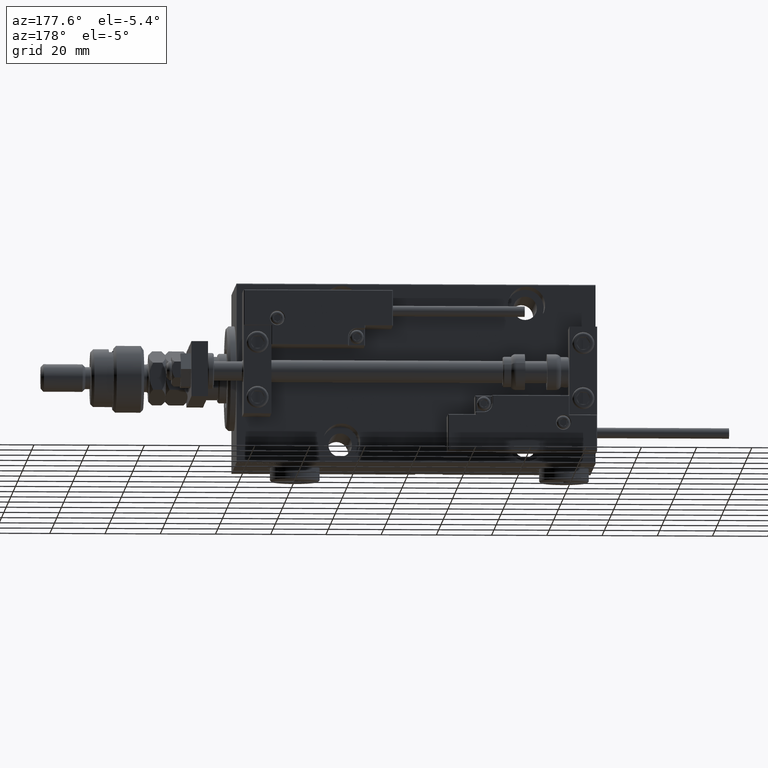
[diagram: clean part render]
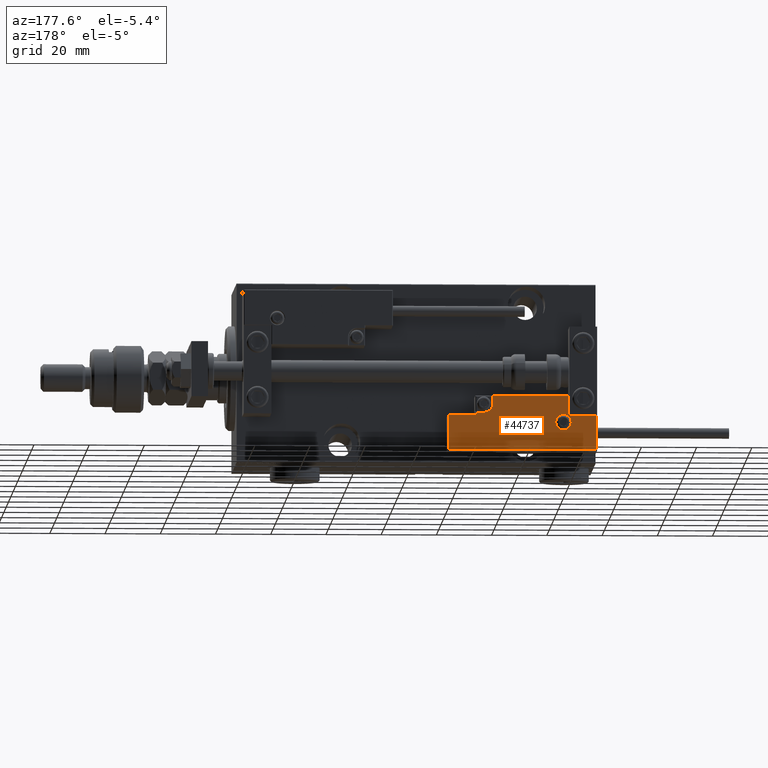
[diagram: same view with one face highlighted and labeled with its STEP entity id]
A machine part, auxiliary view. The second image highlights one B-rep face of the part: STEP entity #44737.
In plain terms, the highlighted planar face has unit normal (-0, 1, 0).
Its self-contained STEP definition (entity closure, byte-faithful):
#925 = FACE_OUTER_BOUND ( 'NONE', #20033, .T. ) ;
#1190 = PLANE ( 'NONE',  #5448 ) ;
#2092 = EDGE_CURVE ( 'NONE', #2790, #44633, #23095, .T. ) ;
#2344 = VERTEX_POINT ( 'NONE', #2877 ) ;
#2466 = VERTEX_POINT ( 'NONE', #3973 ) ;
#2469 = CARTESIAN_POINT ( 'NONE',  ( -17.59999999999994813, 9.800000000000004263, 14.00000000000000000 ) ) ;
#2790 = VERTEX_POINT ( 'NONE', #13945 ) ;
#2877 = CARTESIAN_POINT ( 'NONE',  ( -16.69999999999999218, 0.3000000000000032085, 14.00000000000000000 ) ) ;
#3855 = DIRECTION ( 'NONE',  ( 1.000000000000000000, 0.000000000000000000, 0.000000000000000000 ) ) ;
#3865 = CARTESIAN_POINT ( 'NONE',  ( 17.00000000000000000, 6.300000000000003375, 14.00000000000000000 ) ) ;
#3973 = CARTESIAN_POINT ( 'NONE',  ( -11.99999999999994849, 9.800000000000004263, 14.00000000000000000 ) ) ;
#4068 = LINE ( 'NONE', #45200, #47475 ) ;
#4215 = DIRECTION ( 'NONE',  ( 9.912705577010318647E-16, 1.000000000000000000, 0.000000000000000000 ) ) ;
#4761 = ORIENTED_EDGE ( 'NONE', *, *, #17379, .T. ) ;
#5448 = AXIS2_PLACEMENT_3D ( 'NONE', #13263, #22043, #26407 ) ;
#5822 = CARTESIAN_POINT ( 'NONE',  ( 11.00000000000000000, 0.3000000000000032085, 14.00000000000000000 ) ) ;
#6696 = CIRCLE ( 'NONE', #45224, 3.299999999999997158 ) ;
#7050 = EDGE_CURVE ( 'NONE', #51741, #47473, #13797, .T. ) ;
#7138 = CARTESIAN_POINT ( 'NONE',  ( 10.69999999999999929, 3.000000000000003109, 14.00000000000000000 ) ) ;
#7734 = ORIENTED_EDGE ( 'NONE', *, *, #37449, .T. ) ;
#8052 = ORIENTED_EDGE ( 'NONE', *, *, #7050, .T. ) ;
#8539 = EDGE_CURVE ( 'NONE', #49960, #50113, #4068, .T. ) ;
#8850 = DIRECTION ( 'NONE',  ( 0.000000000000000000, -0.000000000000000000, -1.000000000000000000 ) ) ;
#9492 = DIRECTION ( 'NONE',  ( -1.000000000000000000, 6.424901762877063495E-17, -0.000000000000000000 ) ) ;
#9932 = CARTESIAN_POINT ( 'NONE',  ( -14.79999999999994920, 9.800000000000004263, 14.00000000000000000 ) ) ;
#9940 = DIRECTION ( 'NONE',  ( 1.000000000000000000, -0.000000000000000000, 0.000000000000000000 ) ) ;
#10657 = DIRECTION ( 'NONE',  ( 0.000000000000000000, -1.000000000000000000, 0.000000000000000000 ) ) ;
#12513 = CARTESIAN_POINT ( 'NONE',  ( -26.69999999999994600, 7.300000000000005151, 14.00000000000000000 ) ) ;
#12563 = DIRECTION ( 'NONE',  ( -0.000000000000000000, 1.000000000000000000, -0.000000000000000000 ) ) ;
#13258 = VECTOR ( 'NONE', #52689, 1000.000000000000000 ) ;
#13263 = CARTESIAN_POINT ( 'NONE',  ( 0.000000000000000000, 0.000000000000000000, 14.00000000000000000 ) ) ;
#13707 = VECTOR ( 'NONE', #51050, 1000.000000000000000 ) ;
#13797 = LINE ( 'NONE', #43118, #33448 ) ;
#13884 = CARTESIAN_POINT ( 'NONE',  ( -26.99999999999993605, 19.70000000000002061, 14.00000000000000000 ) ) ;
#13945 = CARTESIAN_POINT ( 'NONE',  ( 26.70000000000006324, 7.300000000000007816, 14.00000000000000000 ) ) ;
#14603 = EDGE_LOOP ( 'NONE', ( #29658, #39760 ) ) ;
#14776 = LINE ( 'NONE', #31503, #38555 ) ;
#15341 = EDGE_CURVE ( 'NONE', #25052, #51741, #46240, .T. ) ;
#15835 = ORIENTED_EDGE ( 'NONE', *, *, #38937, .T. ) ;
#16376 = AXIS2_PLACEMENT_3D ( 'NONE', #42228, #21131, #3855 ) ;
#16992 = EDGE_CURVE ( 'NONE', #47133, #2790, #29938, .T. ) ;
#17373 = LINE ( 'NONE', #5822, #21882 ) ;
#17379 = EDGE_CURVE ( 'NONE', #45648, #47133, #33282, .T. ) ;
#18264 = CARTESIAN_POINT ( 'NONE',  ( -26.69999999999994600, 7.000000000000005329, 14.00000000000000000 ) ) ;
#19074 = VERTEX_POINT ( 'NONE', #28719 ) ;
#20033 = EDGE_LOOP ( 'NONE', ( #7734, #15835, #32958, #45014, #43613, #4761, #47252, #39904, #46717, #29077, #8052 ) ) ;
#20154 = CARTESIAN_POINT ( 'NONE',  ( 16.69999999999999929, 6.300000000000003375, 14.00000000000000000 ) ) ;
#21131 = DIRECTION ( 'NONE',  ( 0.000000000000000000, -0.000000000000000000, -1.000000000000000000 ) ) ;
#21258 = EDGE_CURVE ( 'NONE', #2466, #46173, #52260, .T. ) ;
#21486 = DIRECTION ( 'NONE',  ( 1.000000000000000000, 0.000000000000000000, 0.000000000000000000 ) ) ;
#21882 = VECTOR ( 'NONE', #9940, 1000.000000000000000 ) ;
#22043 = DIRECTION ( 'NONE',  ( -0.000000000000000000, 0.000000000000000000, 1.000000000000000000 ) ) ;
#23095 = LINE ( 'NONE', #48296, #29852 ) ;
#23248 = VECTOR ( 'NONE', #42669, 1000.000000000000000 ) ;
#23625 = DIRECTION ( 'NONE',  ( 0.000000000000000000, 1.000000000000000000, -0.000000000000000000 ) ) ;
#24991 = EDGE_CURVE ( 'NONE', #50113, #19074, #6696, .T. ) ;
#25052 = VERTEX_POINT ( 'NONE', #47172 ) ;
#26389 = DIRECTION ( 'NONE',  ( 1.000000000000000000, -1.734723475976815230E-16, 0.000000000000000000 ) ) ;
#26407 = DIRECTION ( 'NONE',  ( 1.000000000000000000, 0.000000000000000000, 0.000000000000000000 ) ) ;
#28097 = CIRCLE ( 'NONE', #46482, 2.800000000000000266 ) ;
#28719 = CARTESIAN_POINT ( 'NONE',  ( 13.99999999999999822, 6.300000000000001599, 14.00000000000000000 ) ) ;
#29077 = ORIENTED_EDGE ( 'NONE', *, *, #15341, .T. ) ;
#29658 = ORIENTED_EDGE ( 'NONE', *, *, #21258, .T. ) ;
#29852 = VECTOR ( 'NONE', #23625, 1000.000000000000000 ) ;
#29938 = LINE ( 'NONE', #46637, #13707 ) ;
#31503 = CARTESIAN_POINT ( 'NONE',  ( -16.69999999999999218, 3.252606517456513302E-15, 14.00000000000000000 ) ) ;
#32958 = ORIENTED_EDGE ( 'NONE', *, *, #8539, .T. ) ;
#33282 = LINE ( 'NONE', #50002, #44346 ) ;
#33448 = VECTOR ( 'NONE', #26389, 1000.000000000000000 ) ;
#34392 = FACE_BOUND ( 'NONE', #14603, .T. ) ;
#37156 = CARTESIAN_POINT ( 'NONE',  ( 26.70000000000006324, 19.70000000000001705, 14.00000000000000000 ) ) ;
#37449 = EDGE_CURVE ( 'NONE', #47473, #2344, #14776, .T. ) ;
#37881 = DIRECTION ( 'NONE',  ( 0.000000000000000000, -0.000000000000000000, -1.000000000000000000 ) ) ;
#38013 = EDGE_CURVE ( 'NONE', #46173, #2466, #28097, .T. ) ;
#38555 = VECTOR ( 'NONE', #10657, 1000.000000000000000 ) ;
#38822 = VECTOR ( 'NONE', #9492, 1000.000000000000000 ) ;
#38937 = EDGE_CURVE ( 'NONE', #2344, #49960, #17373, .T. ) ;
#39760 = ORIENTED_EDGE ( 'NONE', *, *, #38013, .T. ) ;
#39904 = ORIENTED_EDGE ( 'NONE', *, *, #2092, .T. ) ;
#41434 = LINE ( 'NONE', #3865, #13258 ) ;
#42228 = CARTESIAN_POINT ( 'NONE',  ( -14.79999999999994920, 9.800000000000004263, 14.00000000000000000 ) ) ;
#42669 = DIRECTION ( 'NONE',  ( -8.006416042969869188E-16, -1.000000000000000000, 0.000000000000000000 ) ) ;
#42670 = EDGE_CURVE ( 'NONE', #19074, #45648, #41434, .T. ) ;
#43118 = CARTESIAN_POINT ( 'NONE',  ( -16.99999999999999289, 7.300000000000003375, 14.00000000000000000 ) ) ;
#43613 = ORIENTED_EDGE ( 'NONE', *, *, #42670, .T. ) ;
#44346 = VECTOR ( 'NONE', #4215, 1000.000000000000000 ) ;
#44633 = VERTEX_POINT ( 'NONE', #37156 ) ;
#44737 = ADVANCED_FACE ( 'NONE', ( #34392, #925 ), #1190, .T. ) ;
#45014 = ORIENTED_EDGE ( 'NONE', *, *, #24991, .T. ) ;
#45200 = CARTESIAN_POINT ( 'NONE',  ( 10.69999999999999929, 3.000000000000003109, 14.00000000000000000 ) ) ;
#45224 = AXIS2_PLACEMENT_3D ( 'NONE', #49685, #37881, #49127 ) ;
#45648 = VERTEX_POINT ( 'NONE', #20154 ) ;
#46173 = VERTEX_POINT ( 'NONE', #2469 ) ;
#46240 = LINE ( 'NONE', #18264, #23248 ) ;
#46482 = AXIS2_PLACEMENT_3D ( 'NONE', #9932, #8850, #21486 ) ;
#46637 = CARTESIAN_POINT ( 'NONE',  ( 27.00000000000006395, 7.300000000000007816, 14.00000000000000000 ) ) ;
#46717 = ORIENTED_EDGE ( 'NONE', *, *, #46902, .T. ) ;
#46902 = EDGE_CURVE ( 'NONE', #44633, #25052, #50648, .T. ) ;
#47133 = VERTEX_POINT ( 'NONE', #50856 ) ;
#47172 = CARTESIAN_POINT ( 'NONE',  ( -26.69999999999993534, 19.70000000000002061, 14.00000000000000000 ) ) ;
#47252 = ORIENTED_EDGE ( 'NONE', *, *, #16992, .T. ) ;
#47473 = VERTEX_POINT ( 'NONE', #47741 ) ;
#47475 = VECTOR ( 'NONE', #12563, 1000.000000000000000 ) ;
#47741 = CARTESIAN_POINT ( 'NONE',  ( -16.69999999999999218, 7.300000000000003375, 14.00000000000000000 ) ) ;
#48296 = CARTESIAN_POINT ( 'NONE',  ( 26.70000000000006324, 20.00000000000001776, 14.00000000000000000 ) ) ;
#49127 = DIRECTION ( 'NONE',  ( 1.000000000000000000, 0.000000000000000000, 0.000000000000000000 ) ) ;
#49685 = CARTESIAN_POINT ( 'NONE',  ( 13.99999999999999822, 3.000000000000002665, 14.00000000000000000 ) ) ;
#49960 = VERTEX_POINT ( 'NONE', #49990 ) ;
#49990 = CARTESIAN_POINT ( 'NONE',  ( 10.69999999999999929, 0.3000000000000032085, 14.00000000000000000 ) ) ;
#50002 = CARTESIAN_POINT ( 'NONE',  ( 16.69999999999999929, 7.000000000000009770, 14.00000000000000000 ) ) ;
#50113 = VERTEX_POINT ( 'NONE', #7138 ) ;
#50648 = LINE ( 'NONE', #13884, #38822 ) ;
#50856 = CARTESIAN_POINT ( 'NONE',  ( 16.69999999999999929, 7.300000000000009592, 14.00000000000000000 ) ) ;
#51050 = DIRECTION ( 'NONE',  ( 1.000000000000000000, -1.734723475976796001E-16, 0.000000000000000000 ) ) ;
#51741 = VERTEX_POINT ( 'NONE', #12513 ) ;
#52260 = CIRCLE ( 'NONE', #16376, 2.800000000000000266 ) ;
#52689 = DIRECTION ( 'NONE',  ( 1.000000000000000000, 5.782411586589357639E-16, -0.000000000000000000 ) ) ;